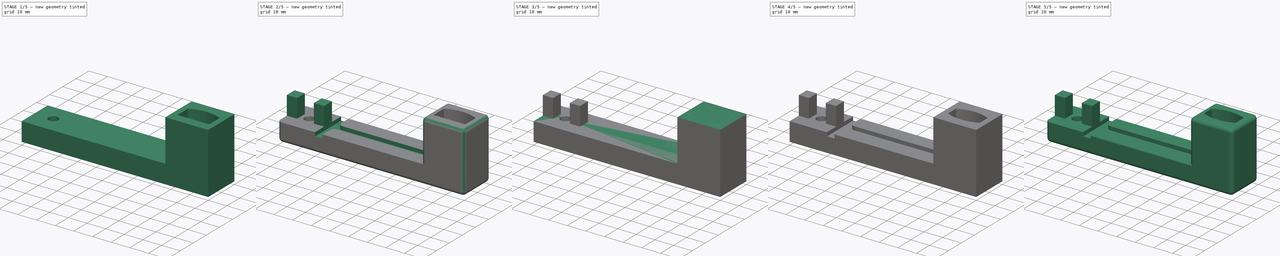
[diagram: build sequence overview — one tinted view per stage of 5, left to right]
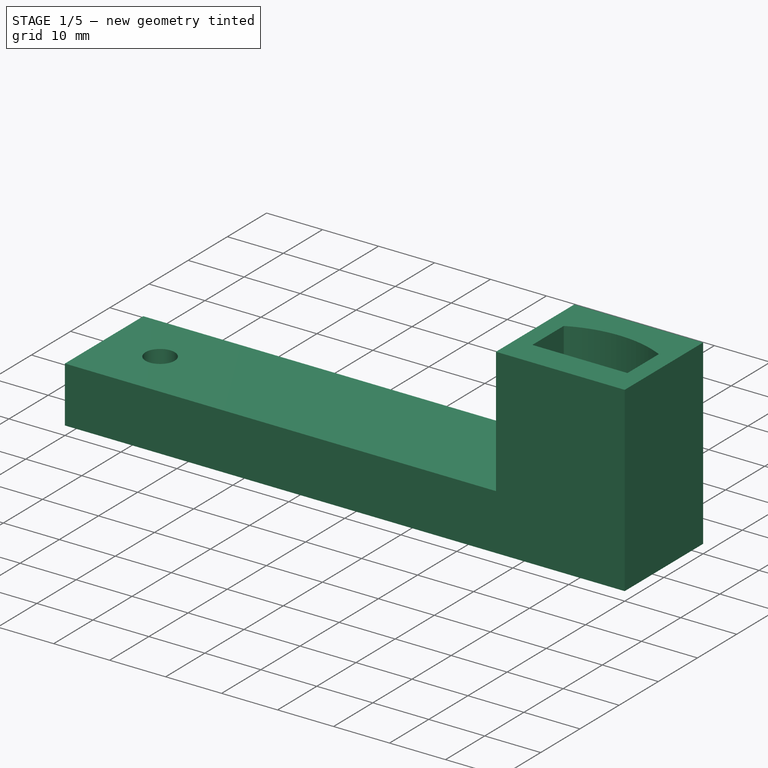
[diagram: stage 1 of 5 — iso view after this stage's code; geometry added in this stage tinted green]
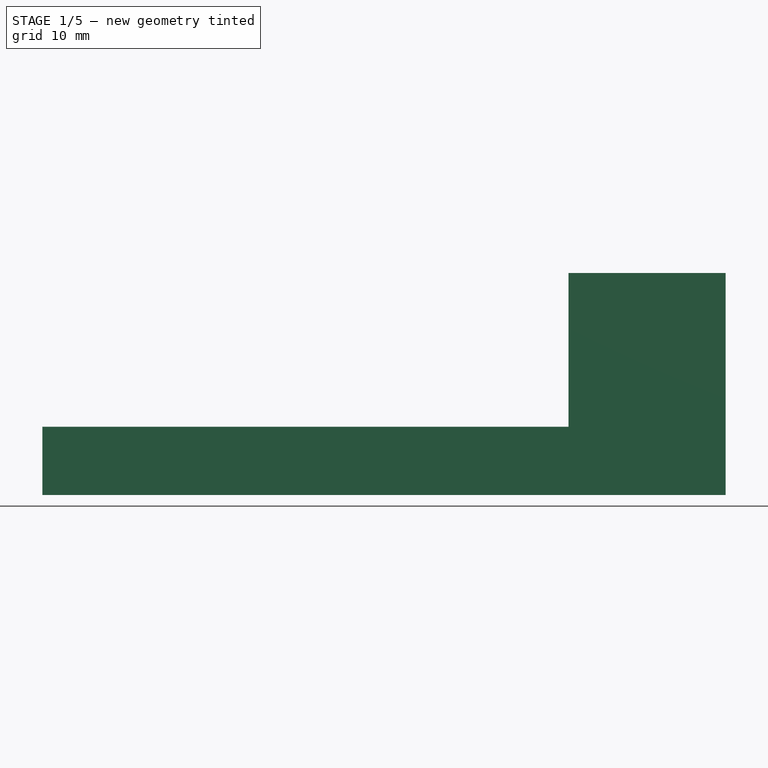
[diagram: stage 1 of 5 — front view after this stage's code; geometry added in this stage tinted green]
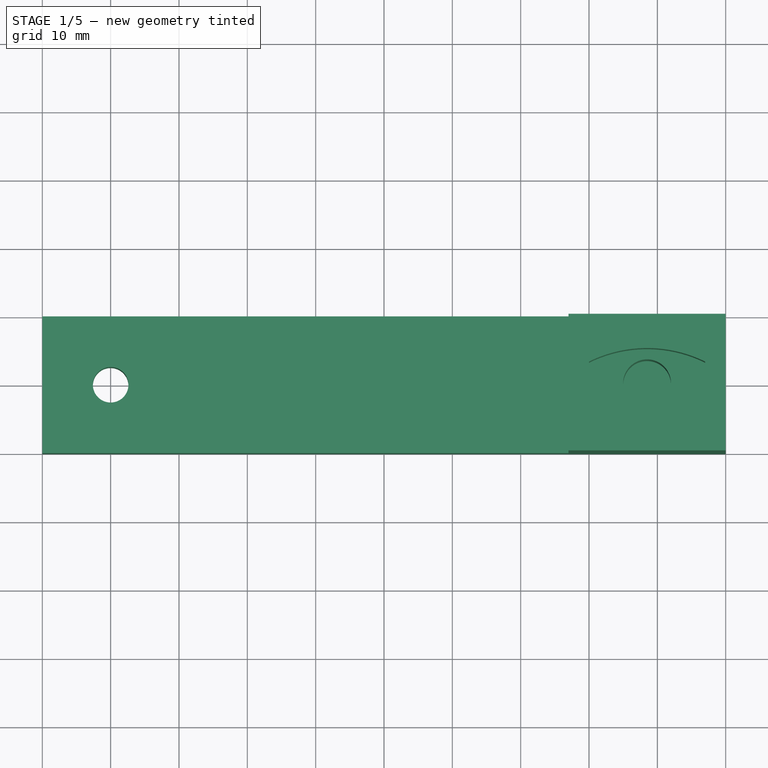
[diagram: stage 1 of 5 — top view after this stage's code; geometry added in this stage tinted green]
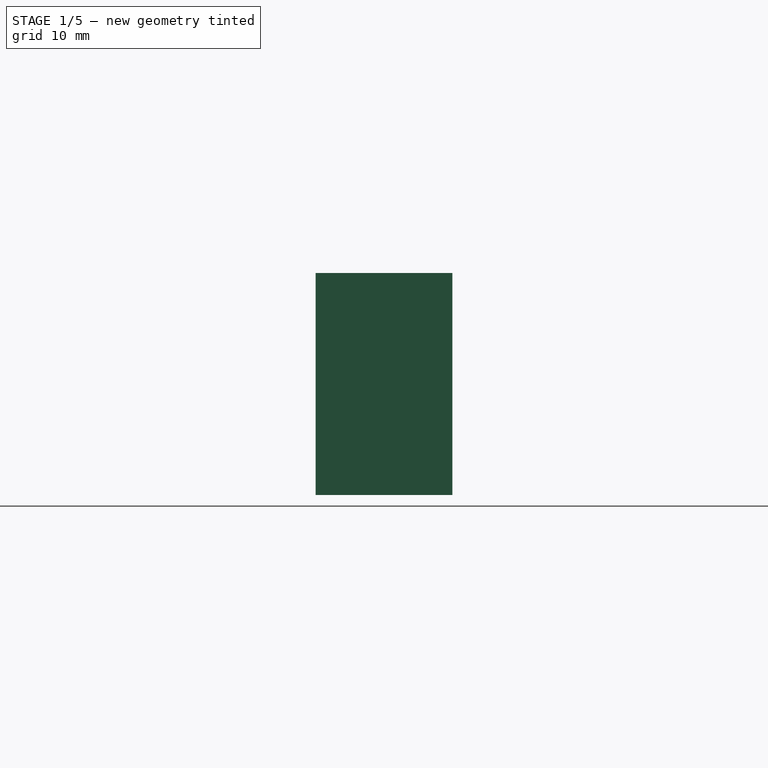
[diagram: stage 1 of 5 — right view after this stage's code; geometry added in this stage tinted green]
FCSTD DOCUMENT  (FreeCAD 0.19R24291 (Git))
Label: LED Bar Bracket
License: All rights reserved
LicenseURL: http://en.wikipedia.org/wiki/All_rights_reserved
objects: Sketcher::SketchObject×14, PartDesign::Pocket×8, PartDesign::Pad×6, PartDesign::Fillet×4, PartDesign::Body×2, Part::Feature×1
note: 53 computed .brp shape members not serialized (recipe doc carries the construction recipe); baked Part::Feature solids carry a one-line shape summary decoded from their .brp

FEATURE [PartDesign::Body] Body  label="Right Support"
  Group = -> [Sketch,Pad,Sketch001,Pad001,Sketch002,Pocket,Sketch003,Pocket001,Sketch004,Pocket002,Sketch006,Pad002,Fillet,Fillet001,Sketch007,Pocket003]
  Origin = -> Origin
  Tip = -> Pocket003
FEATURE [Sketcher::SketchObject] Sketch010
  FullyConstrained = true
  MapMode = 5
  Support = -> [XY_Plane001]
  sketch-geometry (5):
    g0: LineSegment StartX=0 StartY=0 StartZ=0 EndX=100 EndY=0 EndZ=0
    g1: LineSegment StartX=100 StartY=0 StartZ=0 EndX=100 EndY=20 EndZ=0
    g2: LineSegment StartX=100 StartY=20 StartZ=0 EndX=0 EndY=20 EndZ=0
    g3: LineSegment StartX=0 StartY=20 StartZ=0 EndX=0 EndY=0 EndZ=0
    g4: Circle CenterX=10 CenterY=10 CenterZ=0 NormalX=0 NormalY=0 NormalZ=1 AngleXU=0 Radius=2.6
  constraints (14):
    c: Coincident(g0,g1)
    c: Coincident(g1,g2)
    c: Coincident(g2,g3)
    c: Coincident(g3,g0)
    c: Horizontal(g0)
    c: Horizontal(g2)
    c: Vertical(g1)
    c: Vertical(g3)
    c: Coincident(g0,g-1)
    c: DistanceY(g3,g3) = 20
    c: DistanceX(g2,g2) = 100
    c: Radius(g4) = 2.6
    c: DistanceX(g0,g4) = 10
    c: DistanceY(g0,g4) = 10
FEATURE [Sketcher::SketchObject] Sketch013
  FullyConstrained = true
  MapMode = 5
  Placement = pos=(0,0,10) rot=(0,0,1;0rad)
  sketch-geometry (8):
    g0: LineSegment StartX=0 StartY=7 StartZ=0 EndX=5.5 EndY=7 EndZ=0
    g1: LineSegment StartX=5.5 StartY=7 StartZ=0 EndX=5.5 EndY=13 EndZ=0
    g2: LineSegment StartX=5.5 StartY=13 StartZ=0 EndX=0 EndY=13 EndZ=0
    g3: LineSegment StartX=0 StartY=13 StartZ=0 EndX=0 EndY=7 EndZ=0
    g4: LineSegment StartX=14.5 StartY=13 StartZ=0 EndX=20 EndY=13 EndZ=0
    g5: LineSegment StartX=20 StartY=13 StartZ=0 EndX=20 EndY=7 EndZ=0
    g6: LineSegment StartX=20 StartY=7 StartZ=0 EndX=14.5 EndY=7 EndZ=0
    g7: LineSegment StartX=14.5 StartY=7 StartZ=0 EndX=14.5 EndY=13 EndZ=0
  constraints (24):
    c: Coincident(g0,g1)
    c: Coincident(g1,g2)
    c: Coincident(g2,g3)
    c: Coincident(g3,g0)
    c: Horizontal(g0)
    c: Horizontal(g2)
    c: Vertical(g1)
    c: Vertical(g3)
    c: PointOnObject(g0,g-2)
    c: DistanceX(g2,g2) = 5.5
    c: DistanceY(g1,g1) = 6
    c: DistanceY(g-1,g0) = 7
    c: Coincident(g4,g5)
    c: Coincident(g5,g6)
    c: Coincident(g6,g7)
    c: Coincident(g7,g4)
    c: Horizontal(g4)
    c: Horizontal(g6)
    c: Vertical(g5)
    c: Vertical(g7)
    c: Horizontal(g0,g6)
    c: DistanceX(g-1,g5) = 20
    c: Equal(g2,g4)
    c: Equal(g6,g4)
FEATURE [PartDesign::Pad] Pad005
  Direction = (1,1,1)
  Length = 10
  Length2 = 100
  Profile = -> Sketch010
  Type = 0
FEATURE [Sketcher::SketchObject] Sketch012
  ExternalGeometry = -> [Pad005]
  FullyConstrained = true
  MapMode = 5
  Placement = pos=(0,0,10) rot=(0,0,1;0rad)
  Support = -> [Pad005]
  sketch-geometry (4):
    g0: LineSegment StartX=100 StartY=0 StartZ=0 EndX=77 EndY=0 EndZ=0
    g1: LineSegment StartX=77 StartY=0 StartZ=0 EndX=77 EndY=20 EndZ=0
    g2: LineSegment StartX=77 StartY=20 StartZ=0 EndX=100 EndY=20 EndZ=0
    g3: LineSegment StartX=100 StartY=20 StartZ=0 EndX=100 EndY=0 EndZ=0
  constraints (10):
    c: Coincident(g0,g1)
    c: Coincident(g1,g2)
    c: Coincident(g2,g3)
    c: Coincident(g3,g0)
    c: Horizontal(g0)
    c: Horizontal(g2)
    c: Vertical(g1)
    c: Coincident(g0,g-3)
    c: Coincident(g2,g-3)
    c: DistanceX(g2,g2) = 23
FEATURE [PartDesign::Pad] Pad003
  BaseFeature = -> Pad005
  Direction = (1,1,1)
  Length = 22.5
  Length2 = 100
  Profile = -> Sketch012
  Type = 0
FEATURE [Sketcher::SketchObject] Sketch009
  ExternalGeometry = -> [Pad003]
  FullyConstrained = true
  MapMode = 5
  Placement = pos=(0,0,32.5) rot=(0,0,1;0rad)
  Support = -> [Pad003]
  sketch-geometry (4):
    g0: LineSegment StartX=97 StartY=13 StartZ=0 EndX=97 EndY=5 EndZ=0
    g1: LineSegment StartX=80 StartY=5 StartZ=0 EndX=80 EndY=13 EndZ=0
    g2: LineSegment StartX=80 StartY=5 StartZ=0 EndX=97 EndY=5 EndZ=0
    g3: ArcOfCircle CenterX=88.5 CenterY=-4.21598 CenterZ=0 NormalX=0 NormalY=0 NormalZ=1 AngleXU=0 Radius=19.2 StartAngle=1.11218 EndAngle=2.02941
  constraints (13):
    c: Vertical(g0)
    c: Vertical(g1)
    c: DistanceY(g1,g1) = 8
    c: Equal(g1,g0)
    c: DistanceX(g1,g0) = 17
    c: DistanceY(g1,g-3) = 7
    c: DistanceX(g0,g-3) = 3
    c: Coincident(g2,g1)
    c: Coincident(g2,g0)
    c: Horizontal(g2)
    c: Coincident(g3,g1)
    c: Coincident(g3,g0)
    c: Radius(g3) = 19.2
FEATURE [PartDesign::Pocket] Pocket005
  BaseFeature = -> Pad003
  Length = 10
  Length2 = 100
  Profile = -> Sketch009
  Type = 0
FEATURE [Sketcher::SketchObject] Sketch008
  ExternalGeometry = -> [Pocket005]
  FullyConstrained = true
  MapMode = 5
  Placement = pos=(0,0,22.5) rot=(0,0,1;0rad)
  Support = -> [Pocket005]
  sketch-geometry (1):
    g0: Circle CenterX=88.5 CenterY=10 CenterZ=0 NormalX=0 NormalY=0 NormalZ=1 AngleXU=0 Radius=3.5
  constraints (3):
    c: DistanceY(g-3,g0) = 10
    c: DistanceX(g0,g-3) = 11.5
    c: Radius(g0) = 3.5
FEATURE [PartDesign::Pocket] Pocket004
  BaseFeature = -> Pocket005
  Length = 15
  Length2 = 100
  Profile = -> Sketch008
  Type = 0
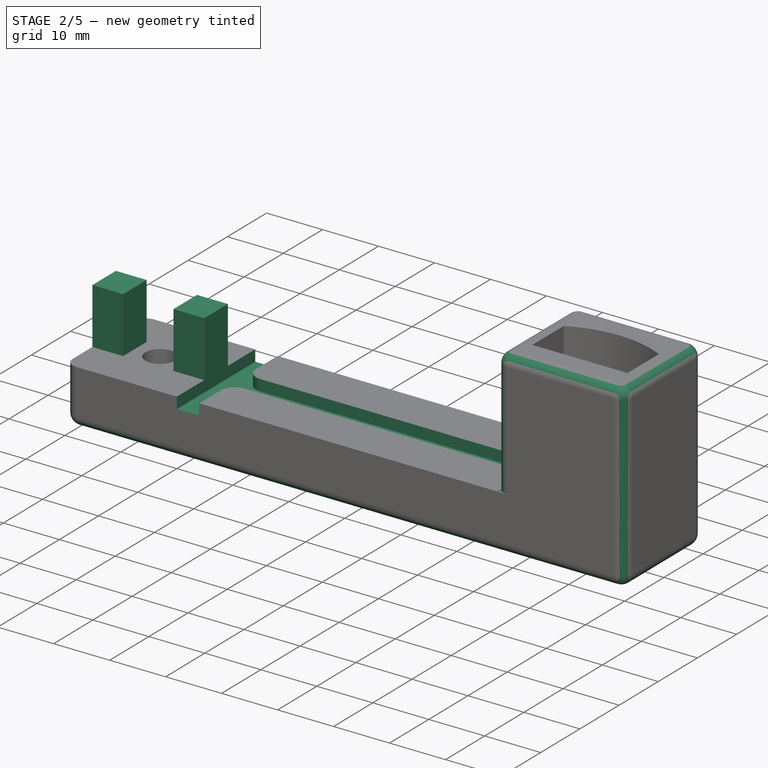
[diagram: stage 2 of 5 — iso view after this stage's code; geometry added in this stage tinted green]
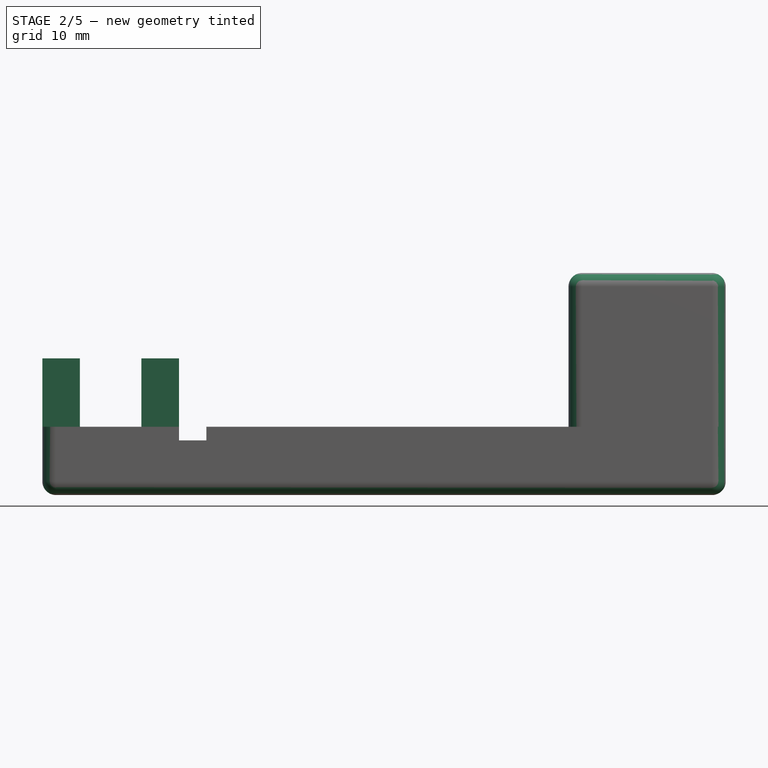
[diagram: stage 2 of 5 — front view after this stage's code; geometry added in this stage tinted green]
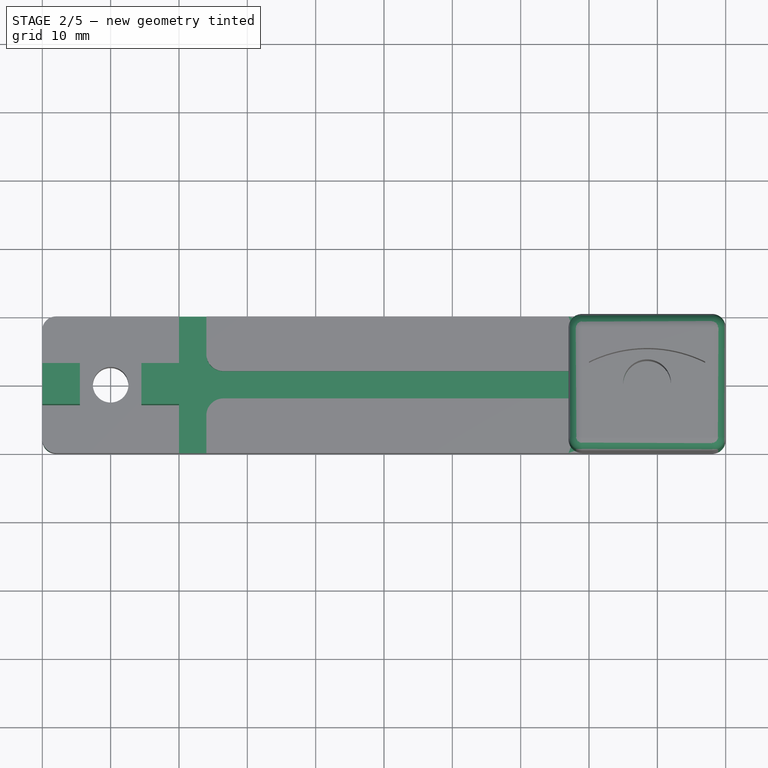
[diagram: stage 2 of 5 — top view after this stage's code; geometry added in this stage tinted green]
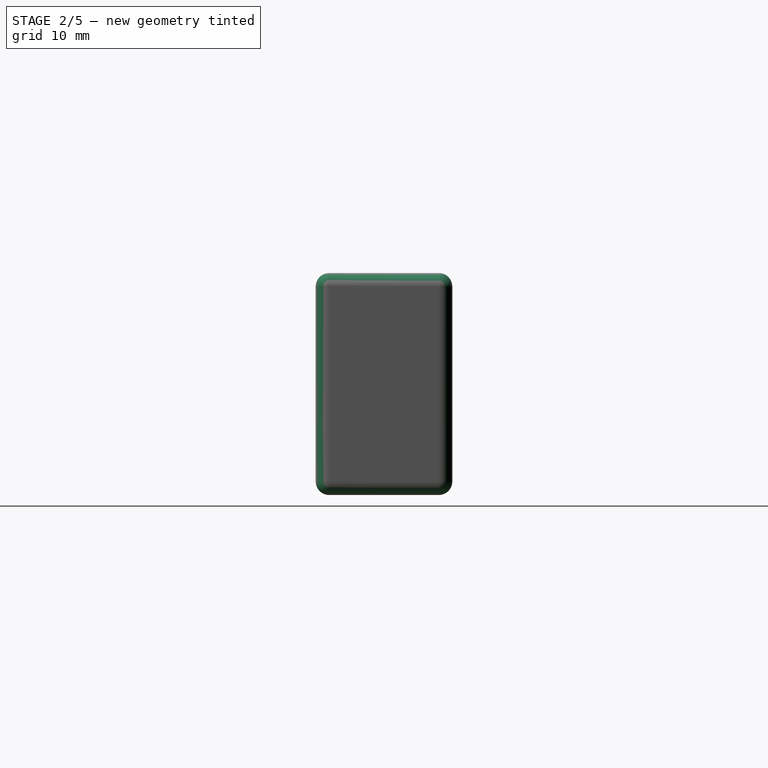
[diagram: stage 2 of 5 — right view after this stage's code; geometry added in this stage tinted green]
FEATURE [Sketcher::SketchObject] Sketch011
  FullyConstrained = true
  MapMode = 5
  Placement = pos=(0,0,10) rot=(0,0,1;0rad)
  Support = -> [Pocket004]
  sketch-geometry (10):
    g0: LineSegment StartX=26.5 StartY=12 StartZ=0 EndX=91.5 EndY=12 EndZ=0
    g1: LineSegment StartX=91.5 StartY=12 StartZ=0 EndX=91.5 EndY=8 EndZ=0
    g2: LineSegment StartX=91.5 StartY=8 StartZ=0 EndX=26.5 EndY=8 EndZ=0
    g3: LineSegment StartX=20 StartY=20 StartZ=0 EndX=24 EndY=20 EndZ=0
    g4: LineSegment StartX=24 StartY=20 StartZ=0 EndX=24 EndY=14.5 EndZ=0
    g5: LineSegment StartX=24 StartY=0 StartZ=0 EndX=20 EndY=0 EndZ=0
    g6: LineSegment StartX=20 StartY=0 StartZ=0 EndX=20 EndY=20 EndZ=0
    g7: LineSegment StartX=24 StartY=5.5 StartZ=0 EndX=24 EndY=0 EndZ=0
    g8: ArcOfCircle CenterX=26.5 CenterY=5.5 CenterZ=0 NormalX=0 NormalY=0 NormalZ=1 AngleXU=0 Radius=2.5 StartAngle=1.5708 EndAngle=3.14159
    g9: ArcOfCircle CenterX=26.5 CenterY=14.5 CenterZ=0 NormalX=0 NormalY=0 NormalZ=1 AngleXU=0 Radius=2.5 StartAngle=3.14159 EndAngle=4.71239
  constraints (27):
    c: Coincident(g0,g1)
    c: Coincident(g1,g2)
    c: Horizontal(g0)
    c: Horizontal(g2)
    c: Vertical(g1)
    c: Coincident(g3,g4)
    c: Coincident(g7,g5)
    c: Coincident(g5,g6)
    c: Coincident(g6,g3)
    c: Horizontal(g3)
    c: Horizontal(g5)
    c: Vertical(g4)
    c: Vertical(g6)
    c: PointOnObject(g7,g-1)
    c: DistanceX(g5,g5) = 4
    c: DistanceX(g-1,g5) = 20
    c: DistanceY(g6,g6) = 20
    c: Tangent(g4,g7)
    c: Tangent(g7,g8) = -1.5708
    c: Tangent(g2,g8) = -1.5708
    c: Tangent(g4,g9) = -1.5708
    c: Tangent(g0,g9) = -1.5708
    c: Equal(g8,g9)
    c: Radius(g9) = 2.5
    c: DistanceY(g2,g0) = 4
    c: Equal(g7,g4)
    c: DistanceX(g0,g0) = 65
FEATURE [PartDesign::Pocket] Pocket006
  BaseFeature = -> Pocket004
  Length = 2
  Length2 = 100
  Profile = -> Sketch011
  Type = 0
FEATURE [PartDesign::Pad] Pad004
  BaseFeature = -> Pocket006
  Direction = (1,1,1)
  Length = 10
  Length2 = 100
  Profile = -> Sketch013
  Type = 0
FEATURE [PartDesign::Fillet] Fillet002
  Base = -> Pad004 [Edge58,Edge18,Edge59,Edge54,Edge10,Edge11,Edge12,Edge1,Edge55,Edge17,Edge16,Edge53,Edge47,Edge9]
  BaseFeature = -> Pad004
  Radius = 2
  SupportTransform = false
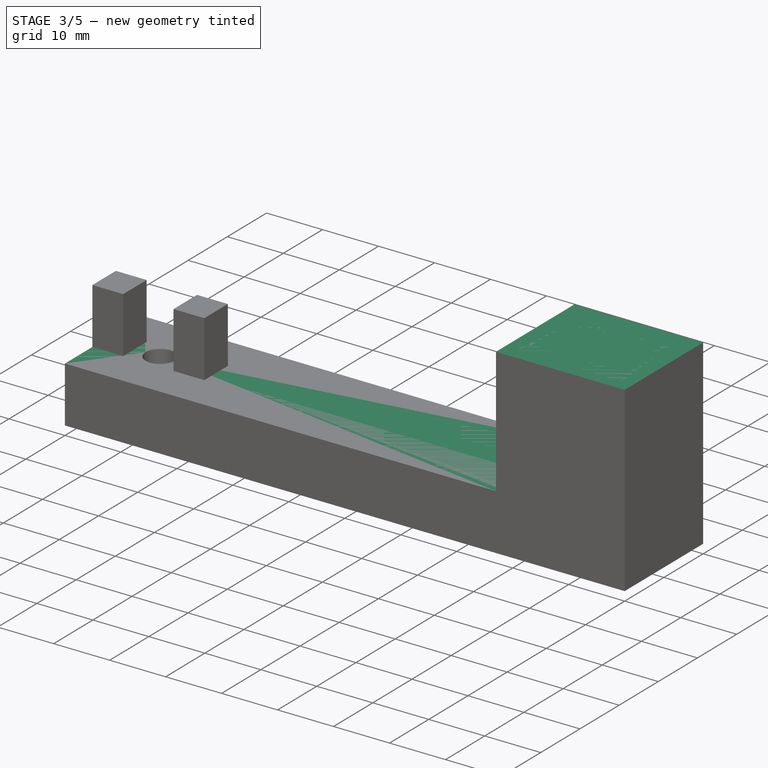
[diagram: stage 3 of 5 — iso view after this stage's code; geometry added in this stage tinted green]
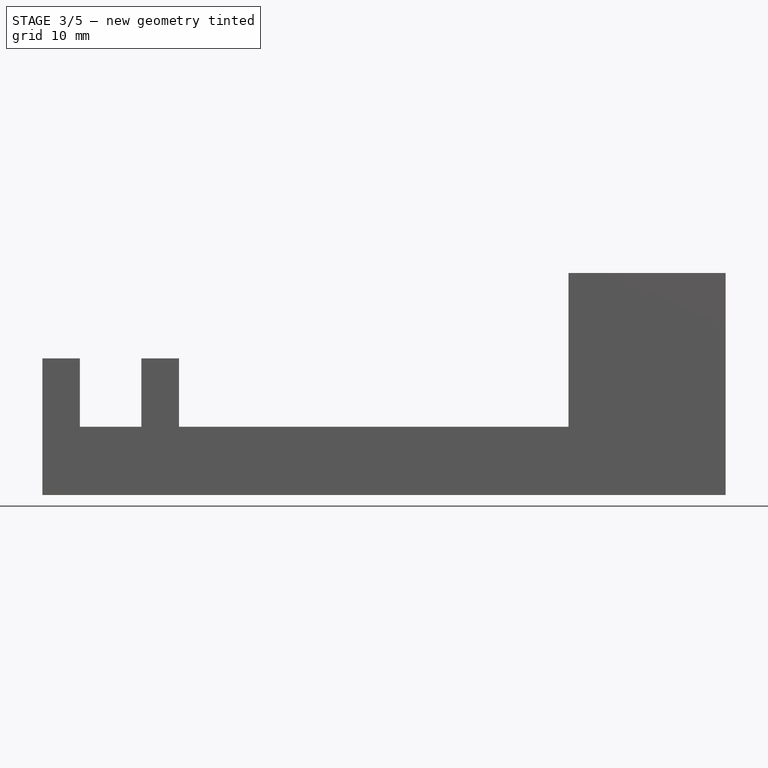
[diagram: stage 3 of 5 — front view after this stage's code; geometry added in this stage tinted green]
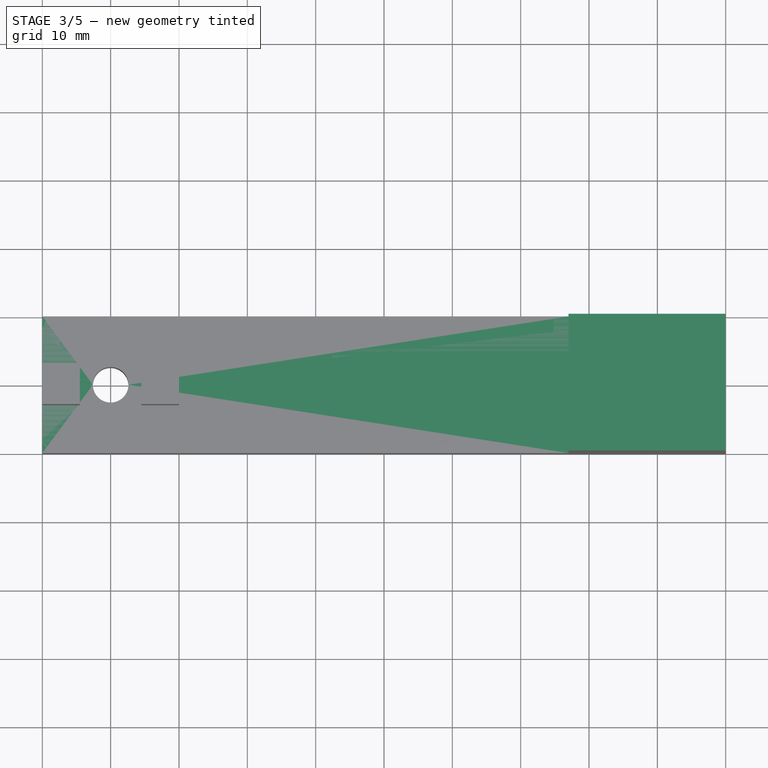
[diagram: stage 3 of 5 — top view after this stage's code; geometry added in this stage tinted green]
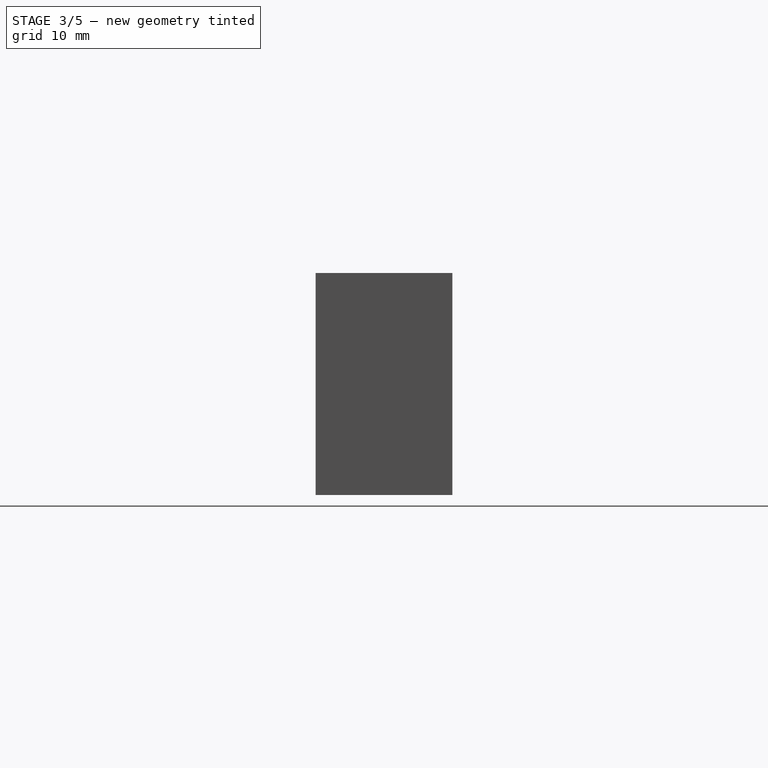
[diagram: stage 3 of 5 — right view after this stage's code; geometry added in this stage tinted green]
FEATURE [Sketcher::SketchObject] Sketch
  FullyConstrained = true
  MapMode = 5
  Support = -> [XY_Plane]
  sketch-geometry (5):
    g0: LineSegment StartX=0 StartY=0 StartZ=0 EndX=100 EndY=0 EndZ=0
    g1: LineSegment StartX=100 StartY=0 StartZ=0 EndX=100 EndY=20 EndZ=0
    g2: LineSegment StartX=100 StartY=20 StartZ=0 EndX=0 EndY=20 EndZ=0
    g3: LineSegment StartX=0 StartY=20 StartZ=0 EndX=0 EndY=0 EndZ=0
    g4: Circle CenterX=10 CenterY=10 CenterZ=0 NormalX=0 NormalY=0 NormalZ=1 AngleXU=0 Radius=2.6
  constraints (14):
    c: Coincident(g0,g1)
    c: Coincident(g1,g2)
    c: Coincident(g2,g3)
    c: Coincident(g3,g0)
    c: Horizontal(g0)
    c: Horizontal(g2)
    c: Vertical(g1)
    c: Vertical(g3)
    c: Coincident(g0,g-1)
    c: DistanceY(g3,g3) = 20
    c: DistanceX(g2,g2) = 100
    c: Radius(g4) = 2.6
    c: DistanceX(g0,g4) = 10
    c: DistanceY(g0,g4) = 10
FEATURE [PartDesign::Pad] Pad
  Direction = (1,1,1)
  Length = 10
  Length2 = 100
  Profile = -> Sketch
  Type = 0
FEATURE [Sketcher::SketchObject] Sketch001
  ExternalGeometry = -> [Pad]
  FullyConstrained = true
  MapMode = 5
  Placement = pos=(0,0,10) rot=(0,0,1;0rad)
  Support = -> [Pad]
  sketch-geometry (4):
    g0: LineSegment StartX=100 StartY=0 StartZ=0 EndX=77 EndY=0 EndZ=0
    g1: LineSegment StartX=77 StartY=0 StartZ=0 EndX=77 EndY=20 EndZ=0
    g2: LineSegment StartX=77 StartY=20 StartZ=0 EndX=100 EndY=20 EndZ=0
    g3: LineSegment StartX=100 StartY=20 StartZ=0 EndX=100 EndY=0 EndZ=0
  constraints (10):
    c: Coincident(g0,g1)
    c: Coincident(g1,g2)
    c: Coincident(g2,g3)
    c: Coincident(g3,g0)
    c: Horizontal(g0)
    c: Horizontal(g2)
    c: Vertical(g1)
    c: Coincident(g0,g-3)
    c: Coincident(g2,g-3)
    c: DistanceX(g2,g2) = 23
FEATURE [PartDesign::Pad] Pad001
  BaseFeature = -> Pad
  Direction = (1,1,1)
  Length = 22.5
  Length2 = 100
  Profile = -> Sketch001
  Type = 0
FEATURE [PartDesign::Fillet] Fillet003
  Base = -> Fillet002 [Edge80,Edge10]
  BaseFeature = -> Fillet002
  Radius = 1
  SupportTransform = false
FEATURE [Sketcher::SketchObject] Sketch014
  ExternalGeometry = -> [Fillet003]
  FullyConstrained = true
  MapMode = 5
  Placement = pos=(0,0,0) rot=(1,0,0;3.14159rad)
  Support = -> [Fillet003]
  sketch-geometry (1):
    g0: Circle CenterX=10 CenterY=-10 CenterZ=0 NormalX=0 NormalY=0 NormalZ=1 AngleXU=0 Radius=4.6
  constraints (2):
    c: Coincident(g0,g-3)
    c: Radius(g0) = 4.6
FEATURE [PartDesign::Pocket] Pocket007
  BaseFeature = -> Fillet003
  Length = 5
  Length2 = 100
  Profile = -> Sketch014
  Type = 0
FEATURE [PartDesign::Body] Body001  label="Left Support"
  Group = -> [Sketch010,Pad005,Sketch012,Pad003,Sketch009,Pocket005,Sketch008,Pocket004,Sketch011,Pocket006,Sketch013,Pad004,Fillet002,Fillet003,Sketch014,Pocket007]
  Origin = -> Origin001
  Placement = pos=(0,20,320) rot=(1,0,0;3.14159rad)
  Tip = -> Pocket007
FEATURE [Part::Feature] Part__Feature  label="2020 alu section v1"
  Placement = pos=(0,0,10) rot=(0,0,1;0rad)
  shape: bbox 20 x 20 x 300 mm, 75 faces (baked)
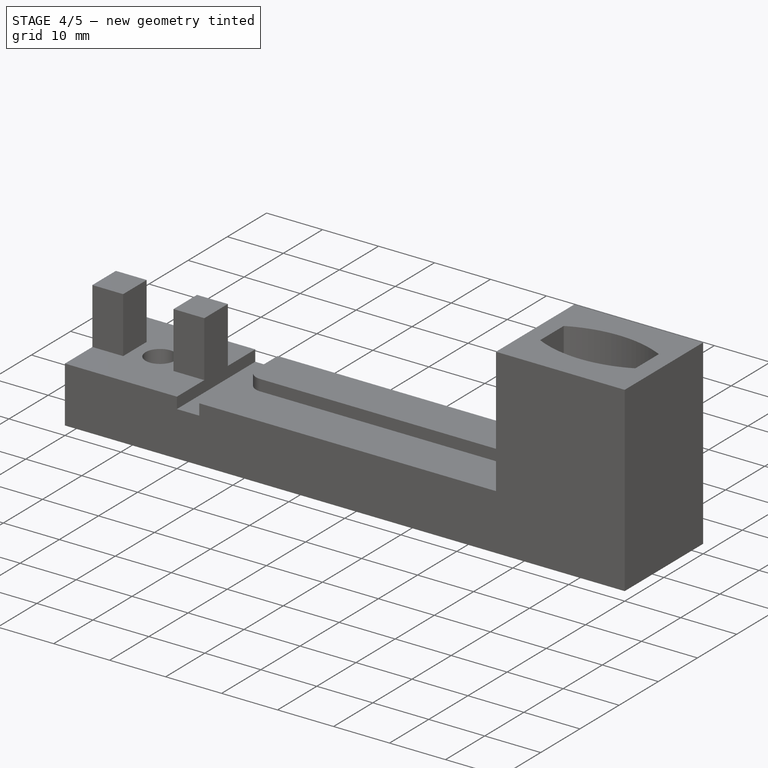
[diagram: stage 4 of 5 — iso view after this stage's code; geometry added in this stage tinted green]
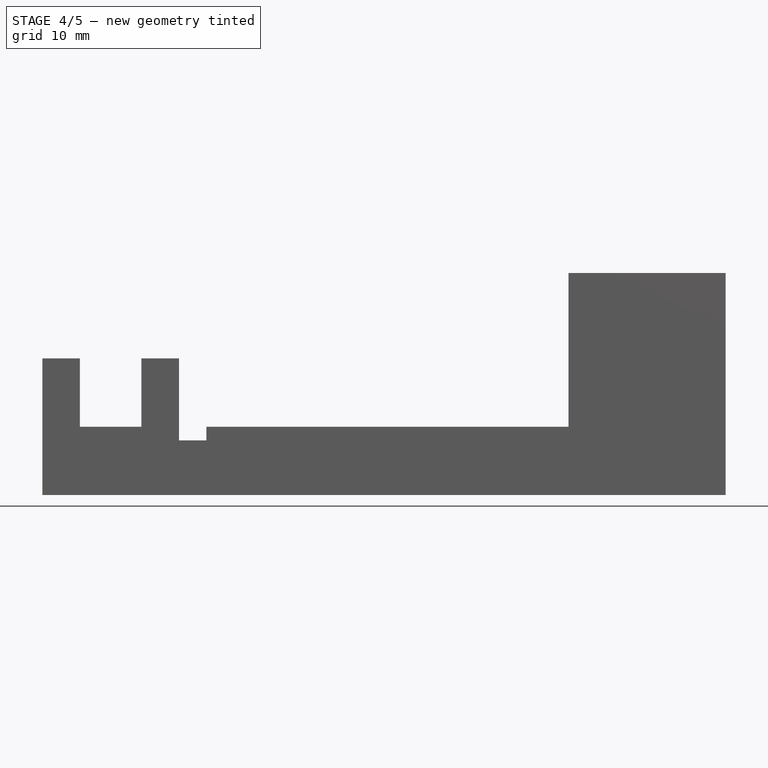
[diagram: stage 4 of 5 — front view after this stage's code; geometry added in this stage tinted green]
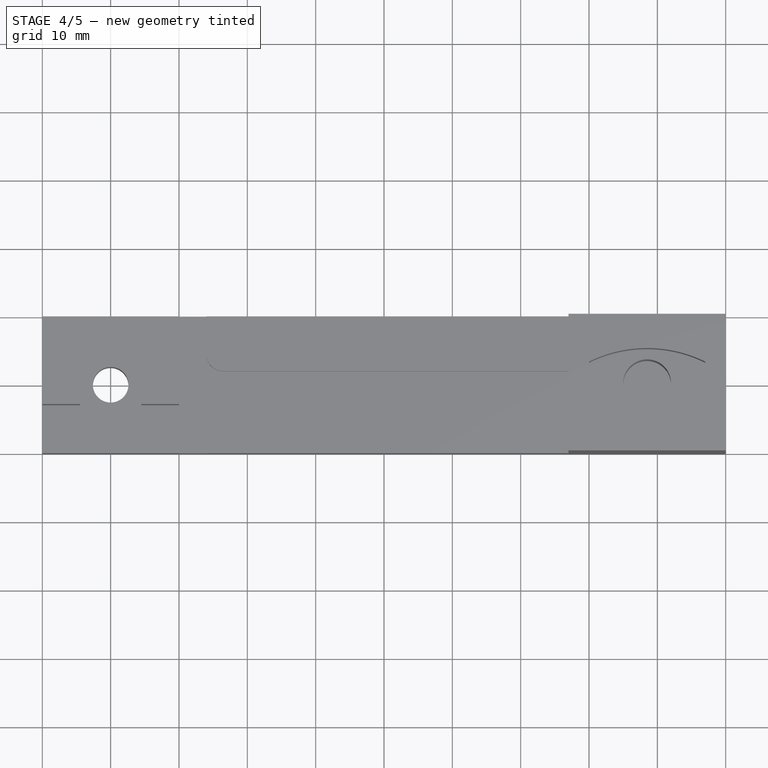
[diagram: stage 4 of 5 — top view after this stage's code; geometry added in this stage tinted green]
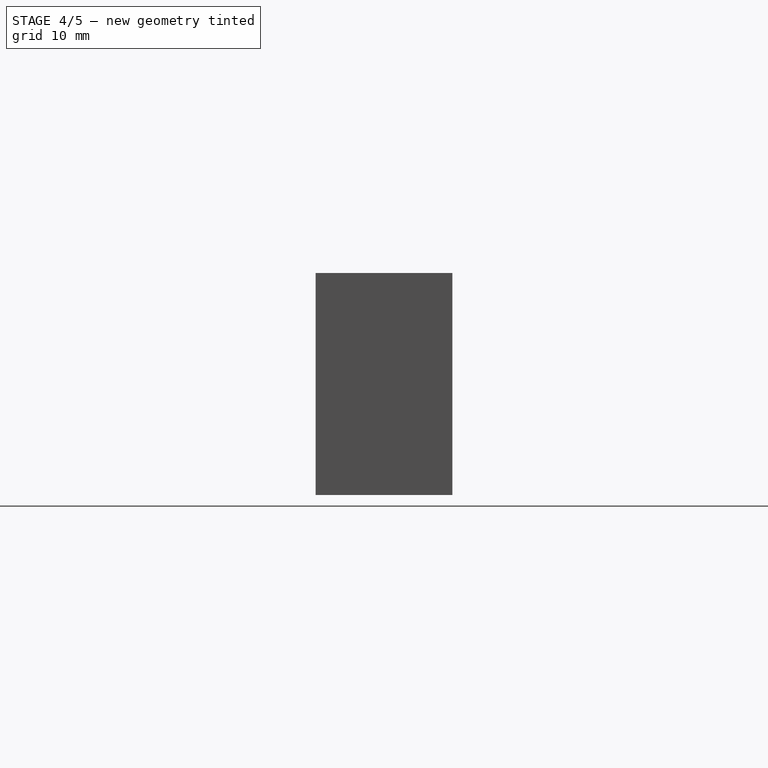
[diagram: stage 4 of 5 — right view after this stage's code; geometry added in this stage tinted green]
FEATURE [Sketcher::SketchObject] Sketch002
  ExternalGeometry = -> [Pad001]
  FullyConstrained = true
  MapMode = 5
  Placement = pos=(0,0,32.5) rot=(0,0,1;0rad)
  Support = -> [Pad001]
  sketch-geometry (4):
    g0: LineSegment StartX=80 StartY=15 StartZ=0 EndX=97 EndY=15 EndZ=0
    g1: LineSegment StartX=97 StartY=15 StartZ=0 EndX=97 EndY=7 EndZ=0
    g2: LineSegment StartX=80 StartY=7 StartZ=0 EndX=80 EndY=15 EndZ=0
    g3: ArcOfCircle CenterX=88.5 CenterY=24.216 CenterZ=0 NormalX=0 NormalY=0 NormalZ=1 AngleXU=0 Radius=19.2 StartAngle=4.25377 EndAngle=5.17101
  constraints (13):
    c: Coincident(g0,g1)
    c: Coincident(g2,g0)
    c: Horizontal(g0)
    c: Vertical(g1)
    c: Vertical(g2)
    c: Coincident(g3,g2)
    c: Coincident(g3,g1)
    c: DistanceY(g2,g2) = 8
    c: Equal(g2,g1)
    c: DistanceX(g0,g0) = 17
    c: DistanceY(g0,g-3) = 5
    c: DistanceX(g1,g-3) = 3
    c: Radius(g3) = 19.2
FEATURE [PartDesign::Pocket] Pocket
  BaseFeature = -> Pad001
  Length = 10
  Length2 = 100
  Profile = -> Sketch002
  Type = 0
FEATURE [Sketcher::SketchObject] Sketch003
  ExternalGeometry = -> [Pocket]
  FullyConstrained = true
  MapMode = 5
  Placement = pos=(0,0,22.5) rot=(0,0,1;0rad)
  Support = -> [Pocket]
  sketch-geometry (1):
    g0: Circle CenterX=88.5 CenterY=10 CenterZ=0 NormalX=0 NormalY=0 NormalZ=1 AngleXU=0 Radius=3.5
  constraints (3):
    c: DistanceY(g-3,g0) = 10
    c: DistanceX(g0,g-3) = 11.5
    c: Radius(g0) = 3.5
FEATURE [PartDesign::Pocket] Pocket001
  BaseFeature = -> Pocket
  Length = 15
  Length2 = 100
  Profile = -> Sketch003
  Type = 0
FEATURE [Sketcher::SketchObject] Sketch004
  FullyConstrained = true
  MapMode = 5
  Placement = pos=(0,0,10) rot=(0,0,1;0rad)
  Support = -> [Pocket001]
  sketch-geometry (10):
    g0: LineSegment StartX=26.5 StartY=12 StartZ=0 EndX=91.5 EndY=12 EndZ=0
    g1: LineSegment StartX=91.5 StartY=12 StartZ=0 EndX=91.5 EndY=8 EndZ=0
    g2: LineSegment StartX=91.5 StartY=8 StartZ=0 EndX=26.5 EndY=8 EndZ=0
    g3: LineSegment StartX=20 StartY=20 StartZ=0 EndX=24 EndY=20 EndZ=0
    g4: LineSegment StartX=24 StartY=20 StartZ=0 EndX=24 EndY=14.5 EndZ=0
    g5: LineSegment StartX=24 StartY=0 StartZ=0 EndX=20 EndY=0 EndZ=0
    g6: LineSegment StartX=20 StartY=0 StartZ=0 EndX=20 EndY=20 EndZ=0
    g7: LineSegment StartX=24 StartY=5.5 StartZ=0 EndX=24 EndY=0 EndZ=0
    g8: ArcOfCircle CenterX=26.5 CenterY=5.5 CenterZ=0 NormalX=0 NormalY=0 NormalZ=1 AngleXU=0 Radius=2.5 StartAngle=1.5708 EndAngle=3.14159
    g9: ArcOfCircle CenterX=26.5 CenterY=14.5 CenterZ=0 NormalX=0 NormalY=0 NormalZ=1 AngleXU=0 Radius=2.5 StartAngle=3.14159 EndAngle=4.71239
  constraints (27):
    c: Coincident(g0,g1)
    c: Coincident(g1,g2)
    c: Horizontal(g0)
    c: Horizontal(g2)
    c: Vertical(g1)
    c: Coincident(g3,g4)
    c: Coincident(g7,g5)
    c: Coincident(g5,g6)
    c: Coincident(g6,g3)
    c: Horizontal(g3)
    c: Horizontal(g5)
    c: Vertical(g4)
    c: Vertical(g6)
    c: PointOnObject(g7,g-1)
    c: DistanceX(g5,g5) = 4
    c: DistanceX(g-1,g5) = 20
    c: DistanceY(g6,g6) = 20
    c: Tangent(g4,g7)
    c: Tangent(g7,g8) = -1.5708
    c: Tangent(g2,g8) = -1.5708
    c: Tangent(g4,g9) = -1.5708
    c: Tangent(g0,g9) = -1.5708
    c: Equal(g8,g9)
    c: Radius(g9) = 2.5
    c: DistanceY(g2,g0) = 4
    c: Equal(g7,g4)
    c: DistanceX(g0,g0) = 65
FEATURE [PartDesign::Pocket] Pocket002
  BaseFeature = -> Pocket001
  Length = 2
  Length2 = 100
  Profile = -> Sketch004
  Type = 0
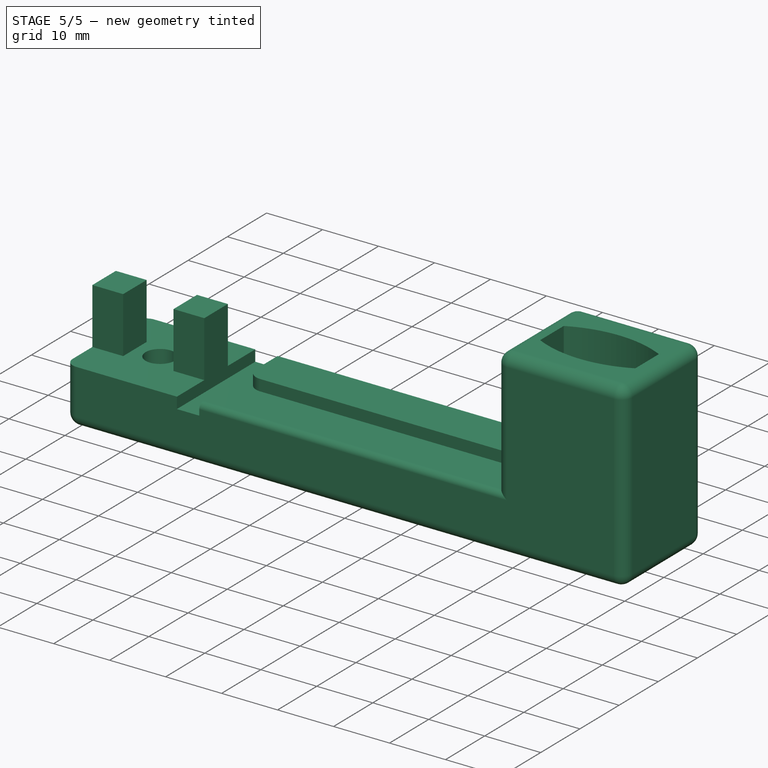
[diagram: stage 5 of 5 — iso view after this stage's code; geometry added in this stage tinted green]
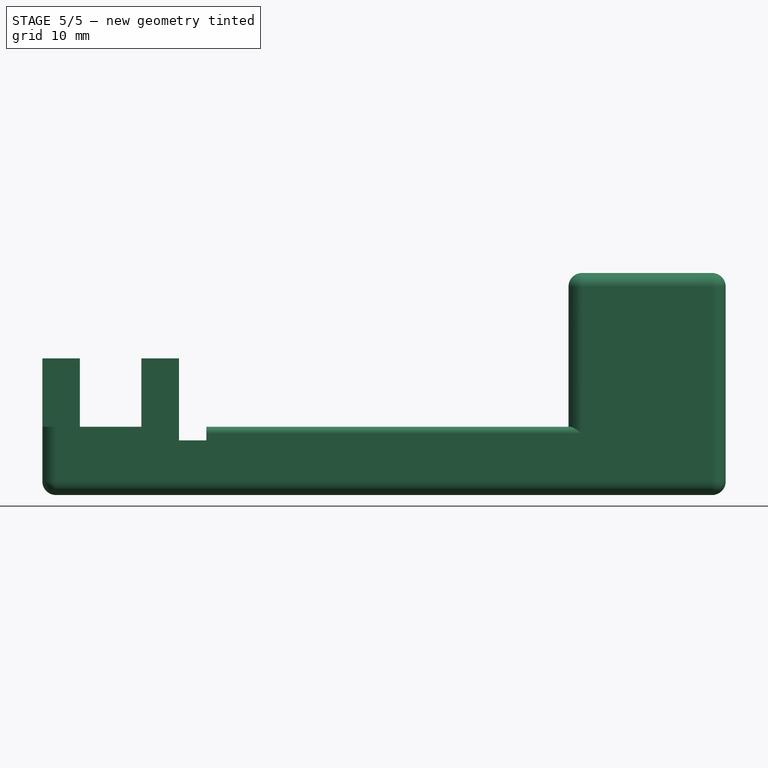
[diagram: stage 5 of 5 — front view after this stage's code; geometry added in this stage tinted green]
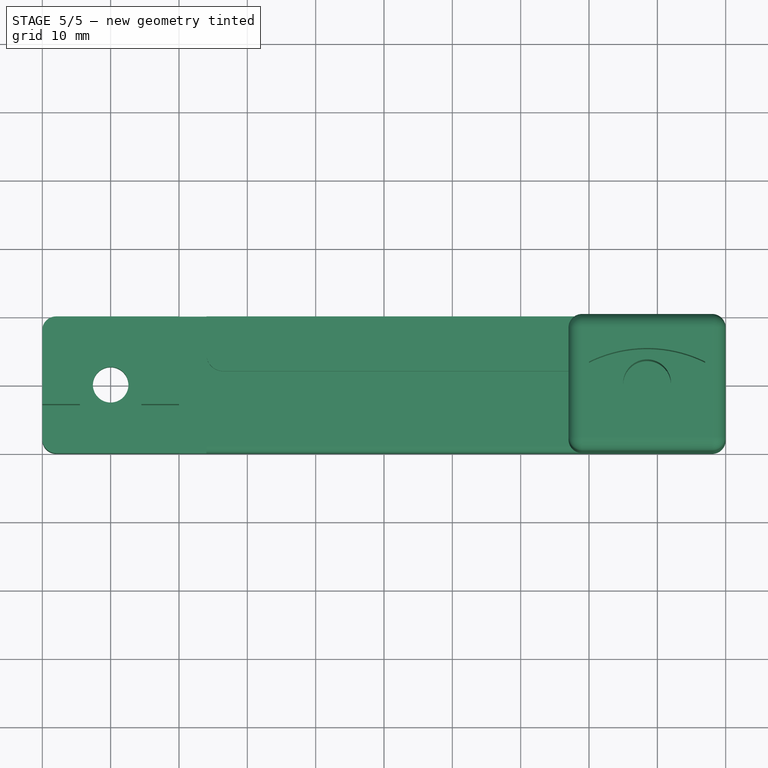
[diagram: stage 5 of 5 — top view after this stage's code; geometry added in this stage tinted green]
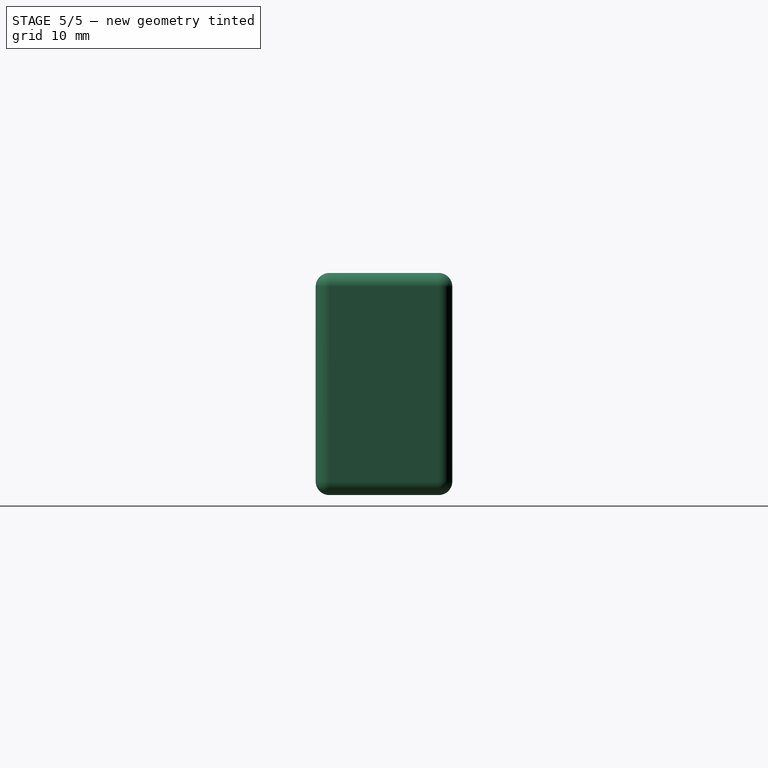
[diagram: stage 5 of 5 — right view after this stage's code; geometry added in this stage tinted green]
FEATURE [Sketcher::SketchObject] Sketch006
  FullyConstrained = true
  MapMode = 5
  Placement = pos=(0,0,10) rot=(0,0,1;0rad)
  sketch-geometry (8):
    g0: LineSegment StartX=0 StartY=7 StartZ=0 EndX=5.5 EndY=7 EndZ=0
    g1: LineSegment StartX=5.5 StartY=7 StartZ=0 EndX=5.5 EndY=13 EndZ=0
    g2: LineSegment StartX=5.5 StartY=13 StartZ=0 EndX=0 EndY=13 EndZ=0
    g3: LineSegment StartX=0 StartY=13 StartZ=0 EndX=0 EndY=7 EndZ=0
    g4: LineSegment StartX=14.5 StartY=13 StartZ=0 EndX=20 EndY=13 EndZ=0
    g5: LineSegment StartX=20 StartY=13 StartZ=0 EndX=20 EndY=7 EndZ=0
    g6: LineSegment StartX=20 StartY=7 StartZ=0 EndX=14.5 EndY=7 EndZ=0
    g7: LineSegment StartX=14.5 StartY=7 StartZ=0 EndX=14.5 EndY=13 EndZ=0
  constraints (24):
    c: Coincident(g0,g1)
    c: Coincident(g1,g2)
    c: Coincident(g2,g3)
    c: Coincident(g3,g0)
    c: Horizontal(g0)
    c: Horizontal(g2)
    c: Vertical(g1)
    c: Vertical(g3)
    c: PointOnObject(g0,g-2)
    c: DistanceX(g2,g2) = 5.5
    c: DistanceY(g1,g1) = 6
    c: DistanceY(g-1,g0) = 7
    c: Coincident(g4,g5)
    c: Coincident(g5,g6)
    c: Coincident(g6,g7)
    c: Coincident(g7,g4)
    c: Horizontal(g4)
    c: Horizontal(g6)
    c: Vertical(g5)
    c: Vertical(g7)
    c: Equal(g1,g7)
    c: Horizontal(g0,g6)
    c: DistanceX(g-1,g5) = 20
    c: Equal(g2,g4)
FEATURE [PartDesign::Pad] Pad002
  BaseFeature = -> Pocket002
  Direction = (1,1,1)
  Length = 10
  Length2 = 100
  Profile = -> Sketch006
  Type = 0
FEATURE [PartDesign::Fillet] Fillet
  Base = -> Pad002 [Edge58,Edge18,Edge59,Edge54,Edge10,Edge11,Edge12,Edge1,Edge55,Edge17,Edge16,Edge53,Edge47,Edge9]
  BaseFeature = -> Pad002
  Radius = 2
  SupportTransform = false
FEATURE [PartDesign::Fillet] Fillet001
  Base = -> Fillet [Edge80,Edge10]
  BaseFeature = -> Fillet
  Radius = 1
  SupportTransform = false
FEATURE [Sketcher::SketchObject] Sketch007
  ExternalGeometry = -> [Fillet001]
  FullyConstrained = true
  MapMode = 5
  Placement = pos=(0,0,0) rot=(1,0,0;3.14159rad)
  Support = -> [Fillet001]
  sketch-geometry (1):
    g0: Circle CenterX=10 CenterY=-10 CenterZ=0 NormalX=0 NormalY=0 NormalZ=1 AngleXU=0 Radius=4.6
  constraints (2):
    c: Coincident(g0,g-3)
    c: Radius(g0) = 4.6
FEATURE [PartDesign::Pocket] Pocket003
  BaseFeature = -> Fillet001
  Length = 5
  Length2 = 100
  Profile = -> Sketch007
  Type = 0
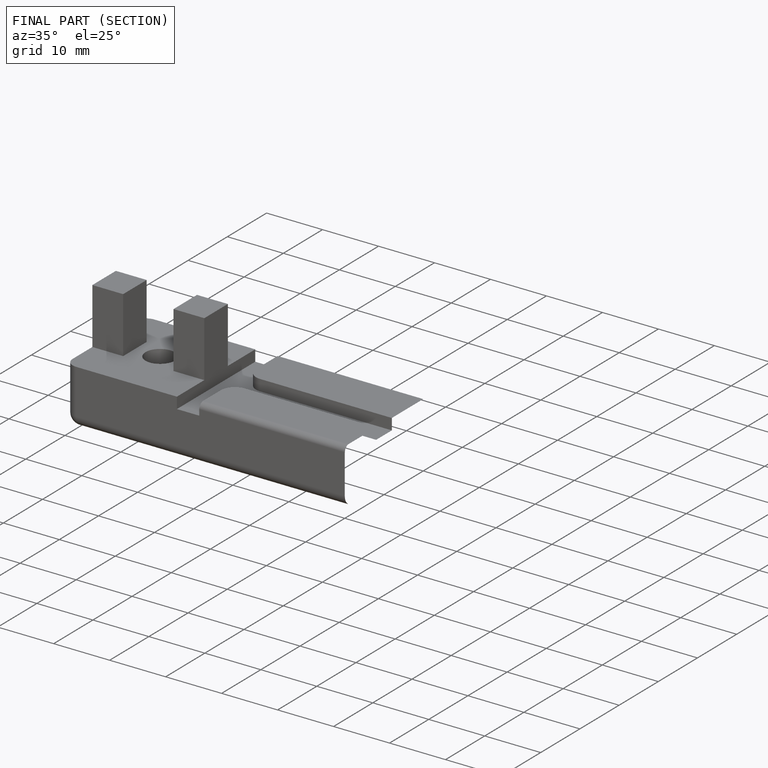
[diagram: finished part — half-section view (interior)]
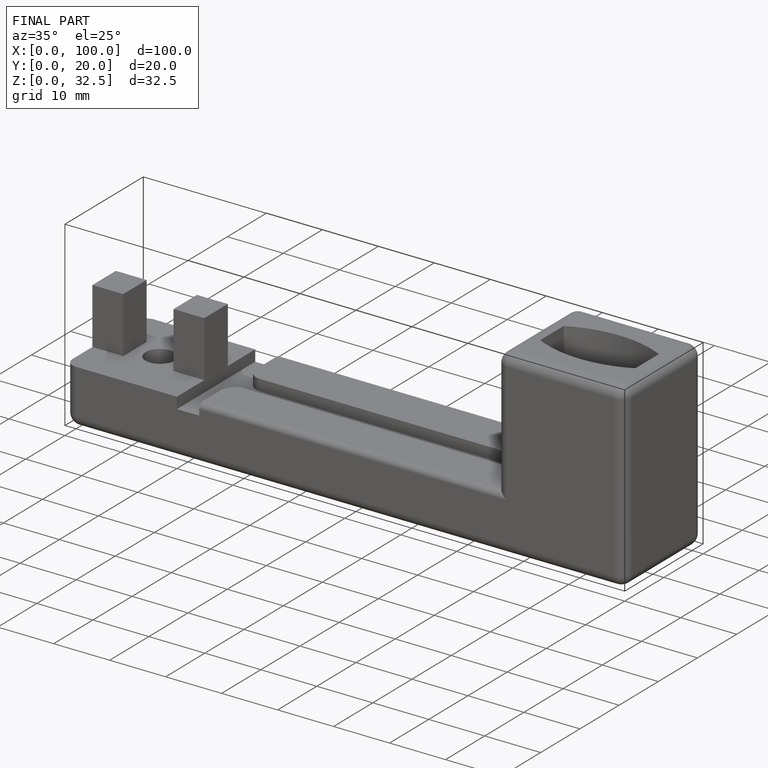
[diagram: finished part — iso view with bounding-box wireframe]
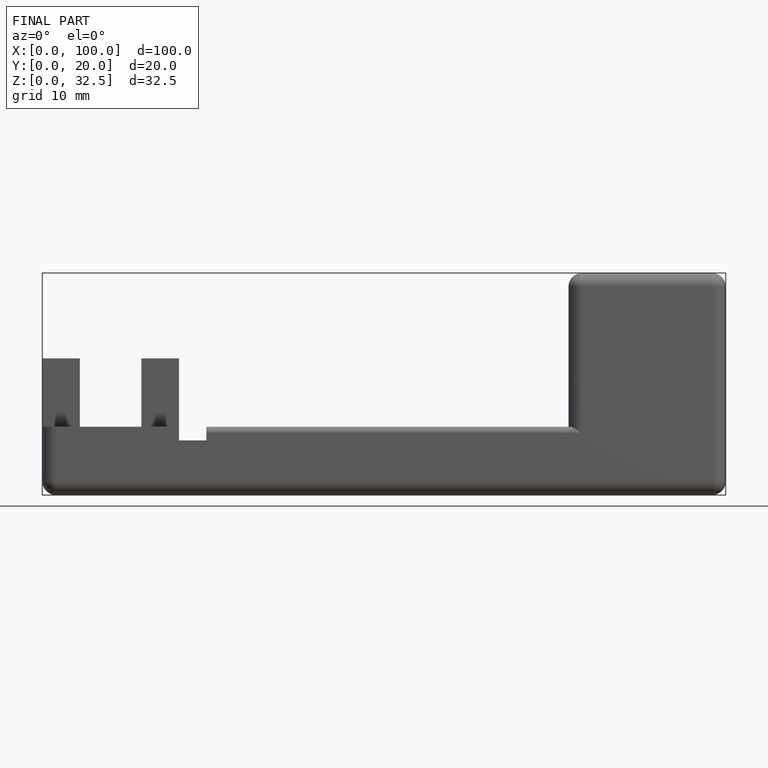
[diagram: finished part — front view with bounding-box wireframe]
